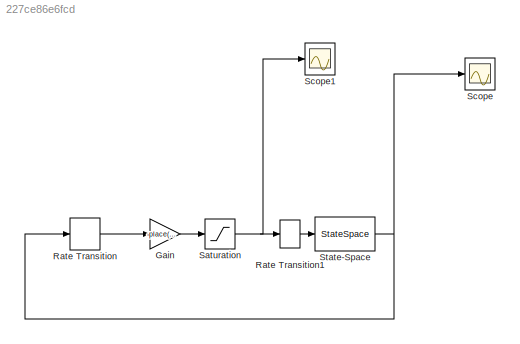
MODEL slx_227ce86e6fcd
KIND model
CONFIG AbsTol = auto
CONFIG EnableMultiTasking = off
CONFIG FixedStep = 1e-4
CONFIG MaxStep = auto
CONFIG MinStep = auto
CONFIG RelTol = 1e-3
CONFIG SampleTimeConstraint = Unconstrained
CONFIG Solver = FixedStepAuto
CONFIG SolverName = FixedStepAuto
CONFIG StartTime = 0.0
CONFIG StopTime = 20.0
BLOCK [Gain] Gain
  Gain = -place(A_sys, B_sys, [-1 -4 -20 -100])
  Multiplication = Matrix(K*u)
  OutDataTypeStr = Inherit: Inherit via internal rule
  ParamDataTypeStr = Inherit: Inherit via internal rule
  SaturateOnIntegerOverflow = off
BLOCK [RateTransition] Rate Transition
  OutPortSampleTime = 2e-3
BLOCK [RateTransition] Rate Transition1
  OutPortSampleTime = 1e-4
BLOCK [Saturate] Saturation
  InputPortMap = u0
  LowerLimit = -22e-3
  Ports = [1, 1]
  UpperLimit = 22e-3
BLOCK [Scope] Scope
  Floating = off
  NumInputPorts = 1
  Ports = [1]
  ScopeSpecificationString = Simulink.scopes.TimeScopeBlockCfg('CurrentConfiguration', extmgr.ConfigurationSet(extmgr.Configuration('Core','General UI',true),extmgr.Configuration('Core','Source UI',true),extmgr.Configuration('Sources','WiredSimulink',true),extmgr.Configuration('Visuals','Time Domain',true,'SerializedDisplays',{struct('MinYLimReal','-2.10393','MaxYLimReal','0.34493','YLabelReal','','MinYLimMag','0.00000','MaxY...<+1503ch>
BLOCK [Scope] Scope1
  Floating = off
  NumInputPorts = 1
  Ports = [1]
  ScopeSpecificationString = Simulink.scopes.TimeScopeBlockCfg('CurrentConfiguration', extmgr.ConfigurationSet(extmgr.Configuration('Core','General UI',true),extmgr.Configuration('Core','Source UI',true),extmgr.Configuration('Sources','WiredSimulink',true,'DataLoggingVariableName','ScopeData1'),extmgr.Configuration('Visuals','Time Domain',true,'SerializedDisplays',{struct('MinYLimReal','-0.02519','MaxYLimReal','0.00669','YLab...<+1398ch>
BLOCK [StateSpace] State-Space
  A = A_sys
  B = B_sys
  C = eye(4)
  D = zeros(4,1)
  InitialCondition = [0 0 0.1 0]
  Ports = [1, 1]
LINE Gain:1 -> Saturation:1
LINE Rate Transition1:1 -> State-Space:1
LINE Rate Transition:1 -> Gain:1
NET Saturation:1 -> Rate Transition1:1, Scope1:1
NET State-Space:1 -> Rate Transition:1, Scope:1
note: NET lines group one-source signal fan-out (src -> all destinations, sorted); 1:1 wires keep LINE
